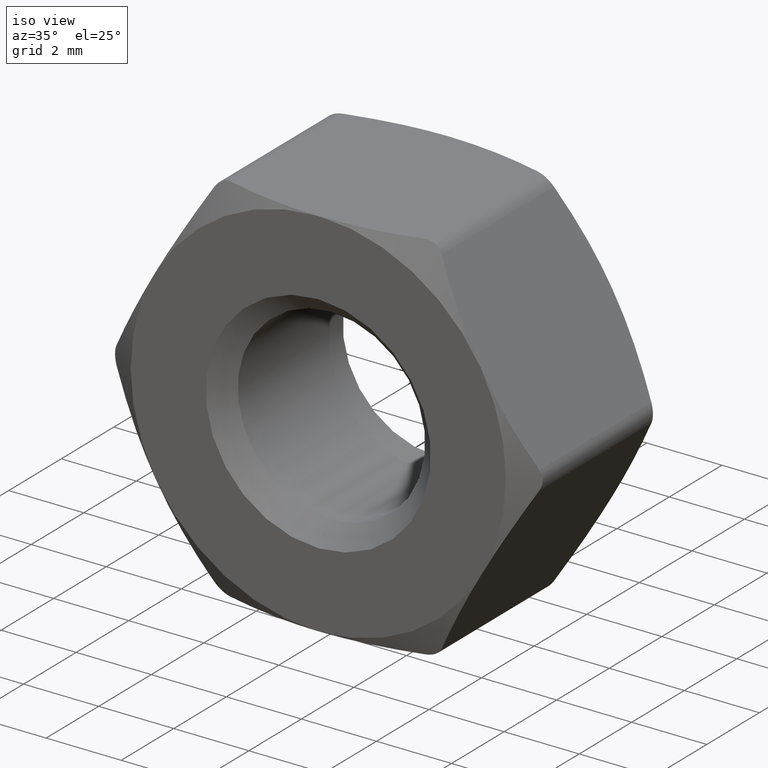
[diagram: clean part render]
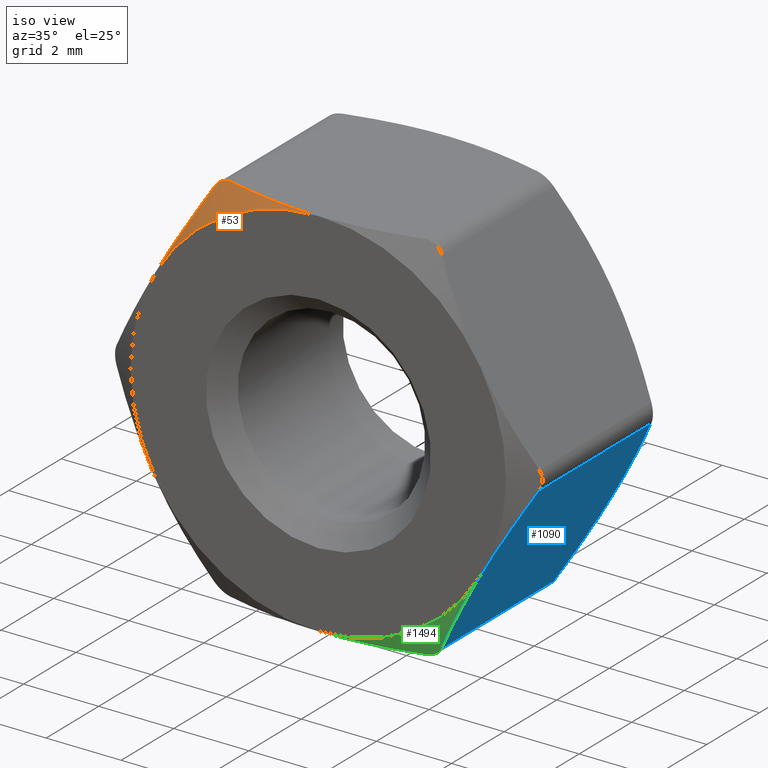
[diagram: same view with three faces highlighted in distinct colors, each labeled with its STEP entity id]
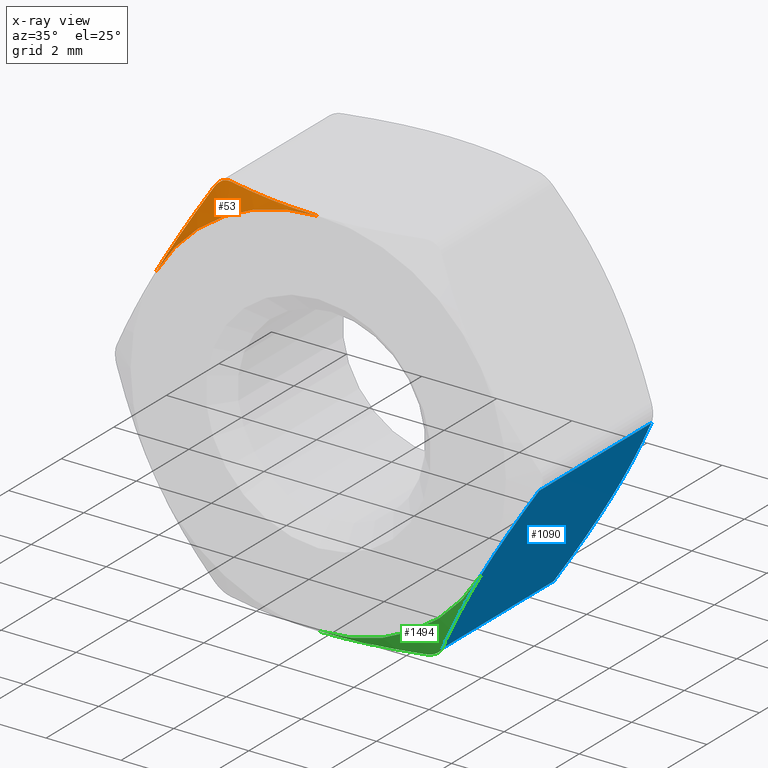
[diagram: x-ray of the same camera — body ghosted, the three highlighted faces saturated]
A machine part, iso view with three faces highlighted in distinct colors.
The next image is the same camera in x-ray (body ghosted, the three faces saturated) — at least one of them is partly hidden behind the body in this view.
Their STEP definitions:

[orange] entity #53 — the highlighted conical surface has half-angle 60 deg.
#8 = B_SPLINE_CURVE_WITH_KNOTS ( 'NONE', 3,
 ( #1335, #642, #392, #132, #926, #1318 ),
 .UNSPECIFIED., .F., .F.,
 ( 4, 2, 4 ),
 ( 1.147774416425301000E-015, 0.0002635016616923247600, 0.0005270033233835016800 ),
 .UNSPECIFIED. ) ;
#15 = CIRCLE ( 'NONE', #473, 4.999999999999999100 ) ;
#25 = ORIENTED_EDGE ( 'NONE', *, *, #245, .T. ) ;
#40 = ORIENTED_EDGE ( 'NONE', *, *, #993, .F. ) ;
#53 = ADVANCED_FACE ( 'NONE', ( #1602 ), #107, .T. ) ;
#92 = B_SPLINE_CURVE_WITH_KNOTS ( 'NONE', 3,
 ( #1581, #518, #1044, #1169, #1573, #773 ),
 .UNSPECIFIED., .F., .F.,
 ( 4, 2, 4 ),
 ( 0.002921158011986713800, 0.004227809343379591200, 0.005534460674772470300 ),
 .UNSPECIFIED. ) ;
#107 = CONICAL_SURFACE ( 'NONE', #502, 4.999999999999999100, 1.047197551196604100 ) ;
#113 = CARTESIAN_POINT ( 'NONE',  ( -3.031088913245535200, -2.133547796624277300, 4.750000000000000000 ) ) ;
#131 = CARTESIAN_POINT ( 'NONE',  ( -3.386450907888040500E-016, -2.500000000000000000, 1.173101005959984800E-015 ) ) ;
#132 = CARTESIAN_POINT ( 'NONE',  ( -2.923932722703592300, -2.098035946016635100, 4.889305204382694100 ) ) ;
#187 = VERTEX_POINT ( 'NONE', #241 ) ;
#224 = CARTESIAN_POINT ( 'NONE',  ( -3.386450907888040000E-016, -2.499999999999999600, 4.999999999999999100 ) ) ;
#230 = CARTESIAN_POINT ( 'NONE',  ( -2.173161805208122300, -2.246662965895615600, 4.999999999999999100 ) ) ;
#241 = CARTESIAN_POINT ( 'NONE',  ( -4.330127018922192800, -2.499999999999999100, 2.500000000000000000 ) ) ;
#243 = EDGE_LOOP ( 'NONE', ( #1382, #25, #1231, #40 ) ) ;
#245 = EDGE_CURVE ( 'NONE', #1265, #586, #8, .T. ) ;
#392 = CARTESIAN_POINT ( 'NONE',  ( -2.771465113498740300, -2.098116676514240700, 4.977155422018474200 ) ) ;
#399 = DIRECTION ( 'NONE',  ( -0.0000000000000000000, -1.000000000000000000, -0.0000000000000000000 ) ) ;
#473 = AXIS2_PLACEMENT_3D ( 'NONE', #131, #399, #672 ) ;
#479 = CARTESIAN_POINT ( 'NONE',  ( -0.4380187123957476900, -2.499999999999999600, 4.999999999999999100 ) ) ;
#502 = AXIS2_PLACEMENT_3D ( 'NONE', #1163, #1055, #1307 ) ;
#518 = CARTESIAN_POINT ( 'NONE',  ( -4.110116077647938400, -2.500000000000002700, 2.881070128508059500 ) ) ;
#586 = VERTEX_POINT ( 'NONE', #113 ) ;
#594 = CARTESIAN_POINT ( 'NONE',  ( -0.8734965585028889900, -2.466289581042887300, 4.999999999999997300 ) ) ;
#600 = CARTESIAN_POINT ( 'NONE',  ( -3.386450907888040000E-016, -2.499999999999999600, 4.999999999999999100 ) ) ;
#642 = CARTESIAN_POINT ( 'NONE',  ( -2.684097962339448500, -2.110648208417288200, 4.999999999999997300 ) ) ;
#672 = DIRECTION ( 'NONE',  ( 0.0000000000000000000, 0.0000000000000000000, 1.000000000000000000 ) ) ;
#773 = CARTESIAN_POINT ( 'NONE',  ( -3.031088913245535200, -2.133547796624277300, 4.750000000000000000 ) ) ;
#850 = EDGE_CURVE ( 'NONE', #187, #586, #92, .T. ) ;
#869 = CARTESIAN_POINT ( 'NONE',  ( -2.598076211354499100, -2.133547796623962900, 4.999999999999999100 ) ) ;
#926 = CARTESIAN_POINT ( 'NONE',  ( -2.988064056856384100, -2.110640764794113000, 4.824521237254366200 ) ) ;
#993 = EDGE_CURVE ( 'NONE', #1436, #187, #15, .T. ) ;
#1004 = CARTESIAN_POINT ( 'NONE',  ( -2.598076211354499100, -2.133547796623962900, 4.999999999999999100 ) ) ;
#1044 = CARTESIAN_POINT ( 'NONE',  ( -3.890097551276379100, -2.465603583740588100, 3.262153394790034500 ) ) ;
#1055 = DIRECTION ( 'NONE',  ( 1.354580363155216500E-016, 1.000000000000000000, 0.0000000000000000000 ) ) ;
#1145 = CARTESIAN_POINT ( 'NONE',  ( -1.739999404489925800, -2.339791525037610200, 4.999999999999999100 ) ) ;
#1163 = CARTESIAN_POINT ( 'NONE',  ( -3.386450907888040500E-016, -2.499999999999999600, 0.0000000000000000000 ) ) ;
#1169 = CARTESIAN_POINT ( 'NONE',  ( -3.457352440449193800, -2.338705476013393600, 4.011689913469742100 ) ) ;
#1231 = ORIENTED_EDGE ( 'NONE', *, *, #850, .F. ) ;
#1265 = VERTEX_POINT ( 'NONE', #869 ) ;
#1305 = EDGE_CURVE ( 'NONE', #1265, #1436, #1352, .T. ) ;
#1307 = DIRECTION ( 'NONE',  ( 1.000000000000000000, -1.734723475976807300E-016, 0.0000000000000000000 ) ) ;
#1318 = CARTESIAN_POINT ( 'NONE',  ( -3.031088913245535200, -2.133547796624277300, 4.750000000000000000 ) ) ;
#1335 = CARTESIAN_POINT ( 'NONE',  ( -2.598076211354499100, -2.133547796623962900, 4.999999999999999100 ) ) ;
#1352 = B_SPLINE_CURVE_WITH_KNOTS ( 'NONE', 3,
 ( #1004, #230, #1145, #594, #479, #224 ),
 .UNSPECIFIED., .F., .F.,
 ( 4, 2, 4 ),
 ( 0.005448447349268917100, 0.006759577961289052800, 0.008070708573309187700 ),
 .UNSPECIFIED. ) ;
#1382 = ORIENTED_EDGE ( 'NONE', *, *, #1305, .F. ) ;
#1436 = VERTEX_POINT ( 'NONE', #600 ) ;
#1573 = CARTESIAN_POINT ( 'NONE',  ( -3.243356406411418200, -2.246561961703187600, 4.382341917041416400 ) ) ;
#1581 = CARTESIAN_POINT ( 'NONE',  ( -4.330127018922192800, -2.499999999999999100, 2.500000000000000000 ) ) ;
#1602 = FACE_OUTER_BOUND ( 'NONE', #243, .T. ) ;

[blue] entity #1090 — the highlighted planar face has unit normal (-0.866, 0, 0.5).
#13 = DIRECTION ( 'NONE',  ( -0.8660254037844384900, 0.0000000000000000000, 0.5000000000000004400 ) ) ;
#16 = CARTESIAN_POINT ( 'NONE',  ( 5.416897631432973100, 2.246561961703187100, -0.6176580829585822700 ) ) ;
#76 = FACE_OUTER_BOUND ( 'NONE', #866, .T. ) ;
#77 = ORIENTED_EDGE ( 'NONE', *, *, #811, .T. ) ;
#94 = CARTESIAN_POINT ( 'NONE',  ( 4.330127018922192800, 2.500000000000000000, -2.500000000000000000 ) ) ;
#95 = ORIENTED_EDGE ( 'NONE', *, *, #141, .T. ) ;
#136 = VECTOR ( 'NONE', #319, 1000.000000000000000 ) ;
#141 = EDGE_CURVE ( 'NONE', #1083, #958, #497, .T. ) ;
#197 = EDGE_CURVE ( 'NONE', #794, #1083, #1507, .T. ) ;
#210 = CARTESIAN_POINT ( 'NONE',  ( 5.629165124598854300, 2.500000000000000000, -0.2499999999999960600 ) ) ;
#319 = DIRECTION ( 'NONE',  ( 0.0000000000000000000, -1.000000000000000000, 0.0000000000000000000 ) ) ;
#353 = CARTESIAN_POINT ( 'NONE',  ( 3.888340324045452200, 2.500000000000003100, -3.265197001634443400 ) ) ;
#390 = CARTESIAN_POINT ( 'NONE',  ( 4.771913713798933400, -2.500000000000003600, -1.734802998365556400 ) ) ;
#393 = CARTESIAN_POINT ( 'NONE',  ( 5.202901597395192600, 2.338705476013394100, -0.9883100865302531000 ) ) ;
#397 = CARTESIAN_POINT ( 'NONE',  ( 5.203651303690525900, -2.360097271922225300, -0.9870115571359835400 ) ) ;
#400 = CARTESIAN_POINT ( 'NONE',  ( 4.330127018922192800, 2.500000000000000000, -2.500000000000000000 ) ) ;
#403 = CARTESIAN_POINT ( 'NONE',  ( 5.773502691896260900, 2.500000000000000000, 3.903050469030138200E-015 ) ) ;
#496 = CARTESIAN_POINT ( 'NONE',  ( 3.456602734153859200, 2.360097271922225700, -4.012988442864015700 ) ) ;
#497 = B_SPLINE_CURVE_WITH_KNOTS ( 'NONE', 3,
 ( #1023, #496, #353, #94 ),
 .UNSPECIFIED., .F., .F.,
 ( 4, 4 ),
 ( 0.0002973740778378684600, 0.002921158011986716000 ),
 .UNSPECIFIED. ) ;
#514 = CARTESIAN_POINT ( 'NONE',  ( 4.330127018922192800, -2.500000000000000000, -2.500000000000000000 ) ) ;
#526 = CARTESIAN_POINT ( 'NONE',  ( 3.031088913245532500, -2.133547796624277700, -4.750000000000001800 ) ) ;
#610 = CARTESIAN_POINT ( 'NONE',  ( 3.031088913245532500, -2.133547796624277700, -4.750000000000001800 ) ) ;
#619 = CARTESIAN_POINT ( 'NONE',  ( 3.457352440449192400, -2.338705476013395000, -4.011689913469744800 ) ) ;
#689 = EDGE_CURVE ( 'NONE', #1537, #1368, #964, .T. ) ;
#745 = B_SPLINE_CURVE_WITH_KNOTS ( 'NONE', 3,
 ( #400, #892, #1298, #393, #16, #1432 ),
 .UNSPECIFIED., .F., .F.,
 ( 4, 2, 4 ),
 ( 0.002921158011986716000, 0.004227809343379597200, 0.005534460674772478100 ),
 .UNSPECIFIED. ) ;
#794 = VERTEX_POINT ( 'NONE', #526 ) ;
#811 = EDGE_CURVE ( 'NONE', #958, #1244, #745, .T. ) ;
#866 = EDGE_LOOP ( 'NONE', ( #77, #1015, #1519, #1310, #1010, #95 ) ) ;
#871 = CARTESIAN_POINT ( 'NONE',  ( 3.031088913245532500, 2.500000000000000000, -4.750000000000002700 ) ) ;
#892 = CARTESIAN_POINT ( 'NONE',  ( 4.550137960196447100, 2.500000000000003600, -2.118929871491940500 ) ) ;
#958 = VERTEX_POINT ( 'NONE', #1403 ) ;
#964 = B_SPLINE_CURVE_WITH_KNOTS ( 'NONE', 3,
 ( #1052, #397, #390, #514 ),
 .UNSPECIFIED., .F., .F.,
 ( 4, 4 ),
 ( 0.0002973740778378693300, 0.002921158011986718100 ),
 .UNSPECIFIED. ) ;
#965 = AXIS2_PLACEMENT_3D ( 'NONE', #403, #13, #1597 ) ;
#979 = CARTESIAN_POINT ( 'NONE',  ( 5.629165124600557800, -2.133547796623369600, -0.2499999999970449500 ) ) ;
#994 = CARTESIAN_POINT ( 'NONE',  ( 4.110116077647938400, -2.500000000000003600, -2.881070128508060000 ) ) ;
#1010 = ORIENTED_EDGE ( 'NONE', *, *, #197, .T. ) ;
#1015 = ORIENTED_EDGE ( 'NONE', *, *, #1611, .T. ) ;
#1023 = CARTESIAN_POINT ( 'NONE',  ( 3.031088913243828100, 2.133547796623370500, -4.750000000002954100 ) ) ;
#1052 = CARTESIAN_POINT ( 'NONE',  ( 5.629165124600557800, -2.133547796623369600, -0.2499999999970449500 ) ) ;
#1073 = PLANE ( 'NONE',  #965 ) ;
#1083 = VERTEX_POINT ( 'NONE', #1445 ) ;
#1090 = ADVANCED_FACE ( 'NONE', ( #76 ), #1073, .F. ) ;
#1132 = LINE ( 'NONE', #210, #136 ) ;
#1138 = CARTESIAN_POINT ( 'NONE',  ( 3.243356406411414600, -2.246561961703188000, -4.382341917041414600 ) ) ;
#1216 = CARTESIAN_POINT ( 'NONE',  ( 5.629165124598854300, 2.133547796624276800, -0.2499999999999959500 ) ) ;
#1244 = VERTEX_POINT ( 'NONE', #1216 ) ;
#1254 = B_SPLINE_CURVE_WITH_KNOTS ( 'NONE', 3,
 ( #1647, #994, #1263, #619, #1138, #610 ),
 .UNSPECIFIED., .F., .F.,
 ( 4, 2, 4 ),
 ( 0.002921158011986718100, 0.004227809343379597200, 0.005534460674772476300 ),
 .UNSPECIFIED. ) ;
#1263 = CARTESIAN_POINT ( 'NONE',  ( 3.890097551276379100, -2.465603583740590300, -3.262153394790035400 ) ) ;
#1295 = VECTOR ( 'NONE', #1677, 1000.000000000000000 ) ;
#1298 = CARTESIAN_POINT ( 'NONE',  ( 4.770156486568008200, 2.465603583740589000, -1.737846605209963700 ) ) ;
#1310 = ORIENTED_EDGE ( 'NONE', *, *, #1358, .T. ) ;
#1358 = EDGE_CURVE ( 'NONE', #1368, #794, #1254, .T. ) ;
#1368 = VERTEX_POINT ( 'NONE', #1409 ) ;
#1403 = CARTESIAN_POINT ( 'NONE',  ( 4.330127018922192800, 2.500000000000000000, -2.500000000000000000 ) ) ;
#1409 = CARTESIAN_POINT ( 'NONE',  ( 4.330127018922192800, -2.500000000000000000, -2.500000000000000000 ) ) ;
#1432 = CARTESIAN_POINT ( 'NONE',  ( 5.629165124598854300, 2.133547796624276800, -0.2499999999999959500 ) ) ;
#1445 = CARTESIAN_POINT ( 'NONE',  ( 3.031088913243828100, 2.133547796623370500, -4.750000000002954100 ) ) ;
#1507 = LINE ( 'NONE', #871, #1295 ) ;
#1519 = ORIENTED_EDGE ( 'NONE', *, *, #689, .T. ) ;
#1537 = VERTEX_POINT ( 'NONE', #979 ) ;
#1597 = DIRECTION ( 'NONE',  ( 0.5000000000000003300, 0.0000000000000000000, 0.8660254037844383700 ) ) ;
#1611 = EDGE_CURVE ( 'NONE', #1244, #1537, #1132, .T. ) ;
#1647 = CARTESIAN_POINT ( 'NONE',  ( 4.330127018922192800, -2.500000000000000000, -2.500000000000000000 ) ) ;
#1677 = DIRECTION ( 'NONE',  ( -0.0000000000000000000, 1.000000000000000000, -0.0000000000000000000 ) ) ;

[green] entity #1494 — the highlighted conical surface has half-angle 60 deg.
#22 = CARTESIAN_POINT ( 'NONE',  ( 2.176897922532170500, -2.245668385487329400, -5.000000000000000900 ) ) ;
#72 = DIRECTION ( 'NONE',  ( 1.354580363155216500E-016, 1.000000000000000000, 0.0000000000000000000 ) ) ;
#121 = CARTESIAN_POINT ( 'NONE',  ( -3.386450907888040000E-016, -2.499999999999999600, -4.999999999999999100 ) ) ;
#271 = CARTESIAN_POINT ( 'NONE',  ( 2.684097962339620800, -2.110648208417555500, -5.000000000000003600 ) ) ;
#272 = ORIENTED_EDGE ( 'NONE', *, *, #1198, .T. ) ;
#322 = CARTESIAN_POINT ( 'NONE',  ( -3.386450907888040500E-016, -2.499999999999999600, 0.0000000000000000000 ) ) ;
#345 = ORIENTED_EDGE ( 'NONE', *, *, #977, .F. ) ;
#410 = CARTESIAN_POINT ( 'NONE',  ( 1.750304367260593800, -2.337862729513273700, -5.000000000000003600 ) ) ;
#508 = CARTESIAN_POINT ( 'NONE',  ( -3.386450907888040000E-016, -2.499999999999999600, -4.999999999999999100 ) ) ;
#526 = CARTESIAN_POINT ( 'NONE',  ( 3.031088913245532500, -2.133547796624277700, -4.750000000000001800 ) ) ;
#527 = DIRECTION ( 'NONE',  ( 0.0000000000000000000, 0.0000000000000000000, 1.000000000000000000 ) ) ;
#599 = VERTEX_POINT ( 'NONE', #508 ) ;
#610 = CARTESIAN_POINT ( 'NONE',  ( 3.031088913245532500, -2.133547796624277700, -4.750000000000001800 ) ) ;
#619 = CARTESIAN_POINT ( 'NONE',  ( 3.457352440449192400, -2.338705476013395000, -4.011689913469744800 ) ) ;
#684 = CARTESIAN_POINT ( 'NONE',  ( 2.988064056856281100, -2.110640764794059300, -4.824521237254543800 ) ) ;
#707 = ORIENTED_EDGE ( 'NONE', *, *, #1129, .F. ) ;
#714 = B_SPLINE_CURVE_WITH_KNOTS ( 'NONE', 3,
 ( #782, #271, #1614, #821, #684, #1606 ),
 .UNSPECIFIED., .F., .F.,
 ( 4, 2, 4 ),
 ( 4.336808689942017700E-019, 0.0002635016616917558300, 0.0005270033233835112200 ),
 .UNSPECIFIED. ) ;
#782 = CARTESIAN_POINT ( 'NONE',  ( 2.598076211353313300, -2.133547796624276800, -5.000000000000002700 ) ) ;
#790 = DIRECTION ( 'NONE',  ( -0.0000000000000000000, -1.000000000000000000, -0.0000000000000000000 ) ) ;
#794 = VERTEX_POINT ( 'NONE', #526 ) ;
#806 = CARTESIAN_POINT ( 'NONE',  ( 2.598076211353313300, -2.133547796624276800, -5.000000000000002700 ) ) ;
#821 = CARTESIAN_POINT ( 'NONE',  ( 2.923932722703279600, -2.098035946016579200, -4.889305204383000500 ) ) ;
#824 = AXIS2_PLACEMENT_3D ( 'NONE', #322, #72, #1388 ) ;
#897 = CARTESIAN_POINT ( 'NONE',  ( 0.4379327334247493700, -2.499999999999997300, -5.000000000000002700 ) ) ;
#902 = CONICAL_SURFACE ( 'NONE', #824, 4.999999999999999100, 1.047197551196604100 ) ;
#977 = EDGE_CURVE ( 'NONE', #599, #1368, #990, .T. ) ;
#990 = CIRCLE ( 'NONE', #1487, 4.999999999999999100 ) ;
#994 = CARTESIAN_POINT ( 'NONE',  ( 4.110116077647938400, -2.500000000000003600, -2.881070128508060000 ) ) ;
#1069 = CARTESIAN_POINT ( 'NONE',  ( -3.386450907888040500E-016, -2.500000000000000000, 1.173101005959984800E-015 ) ) ;
#1129 = EDGE_CURVE ( 'NONE', #1213, #599, #1598, .T. ) ;
#1138 = CARTESIAN_POINT ( 'NONE',  ( 3.243356406411414600, -2.246561961703188000, -4.382341917041414600 ) ) ;
#1198 = EDGE_CURVE ( 'NONE', #1213, #794, #714, .T. ) ;
#1213 = VERTEX_POINT ( 'NONE', #1593 ) ;
#1254 = B_SPLINE_CURVE_WITH_KNOTS ( 'NONE', 3,
 ( #1647, #994, #1263, #619, #1138, #610 ),
 .UNSPECIFIED., .F., .F.,
 ( 4, 2, 4 ),
 ( 0.002921158011986718100, 0.004227809343379597200, 0.005534460674772476300 ),
 .UNSPECIFIED. ) ;
#1263 = CARTESIAN_POINT ( 'NONE',  ( 3.890097551276379100, -2.465603583740590300, -3.262153394790035400 ) ) ;
#1287 = ORIENTED_EDGE ( 'NONE', *, *, #1358, .F. ) ;
#1349 = CARTESIAN_POINT ( 'NONE',  ( 0.8816963457451879600, -2.465507977430361700, -5.000000000000001800 ) ) ;
#1358 = EDGE_CURVE ( 'NONE', #1368, #794, #1254, .T. ) ;
#1368 = VERTEX_POINT ( 'NONE', #1409 ) ;
#1388 = DIRECTION ( 'NONE',  ( 1.000000000000000000, -1.734723475976807300E-016, 0.0000000000000000000 ) ) ;
#1409 = CARTESIAN_POINT ( 'NONE',  ( 4.330127018922192800, -2.500000000000000000, -2.500000000000000000 ) ) ;
#1458 = FACE_OUTER_BOUND ( 'NONE', #1483, .T. ) ;
#1483 = EDGE_LOOP ( 'NONE', ( #707, #272, #1287, #345 ) ) ;
#1487 = AXIS2_PLACEMENT_3D ( 'NONE', #1069, #790, #527 ) ;
#1494 = ADVANCED_FACE ( 'NONE', ( #1458 ), #902, .T. ) ;
#1593 = CARTESIAN_POINT ( 'NONE',  ( 2.598076211353313300, -2.133547796624276800, -5.000000000000002700 ) ) ;
#1598 = B_SPLINE_CURVE_WITH_KNOTS ( 'NONE', 3,
 ( #806, #22, #410, #1349, #897, #121 ),
 .UNSPECIFIED., .F., .F.,
 ( 4, 2, 4 ),
 ( 0.002415649517230689400, 0.003723171471378682600, 0.005030693425526675700 ),
 .UNSPECIFIED. ) ;
#1606 = CARTESIAN_POINT ( 'NONE',  ( 3.031088913245532500, -2.133547796624277700, -4.750000000000001800 ) ) ;
#1614 = CARTESIAN_POINT ( 'NONE',  ( 2.771465113497980400, -2.098116676514297600, -4.977155422018788600 ) ) ;
#1647 = CARTESIAN_POINT ( 'NONE',  ( 4.330127018922192800, -2.500000000000000000, -2.500000000000000000 ) ) ;